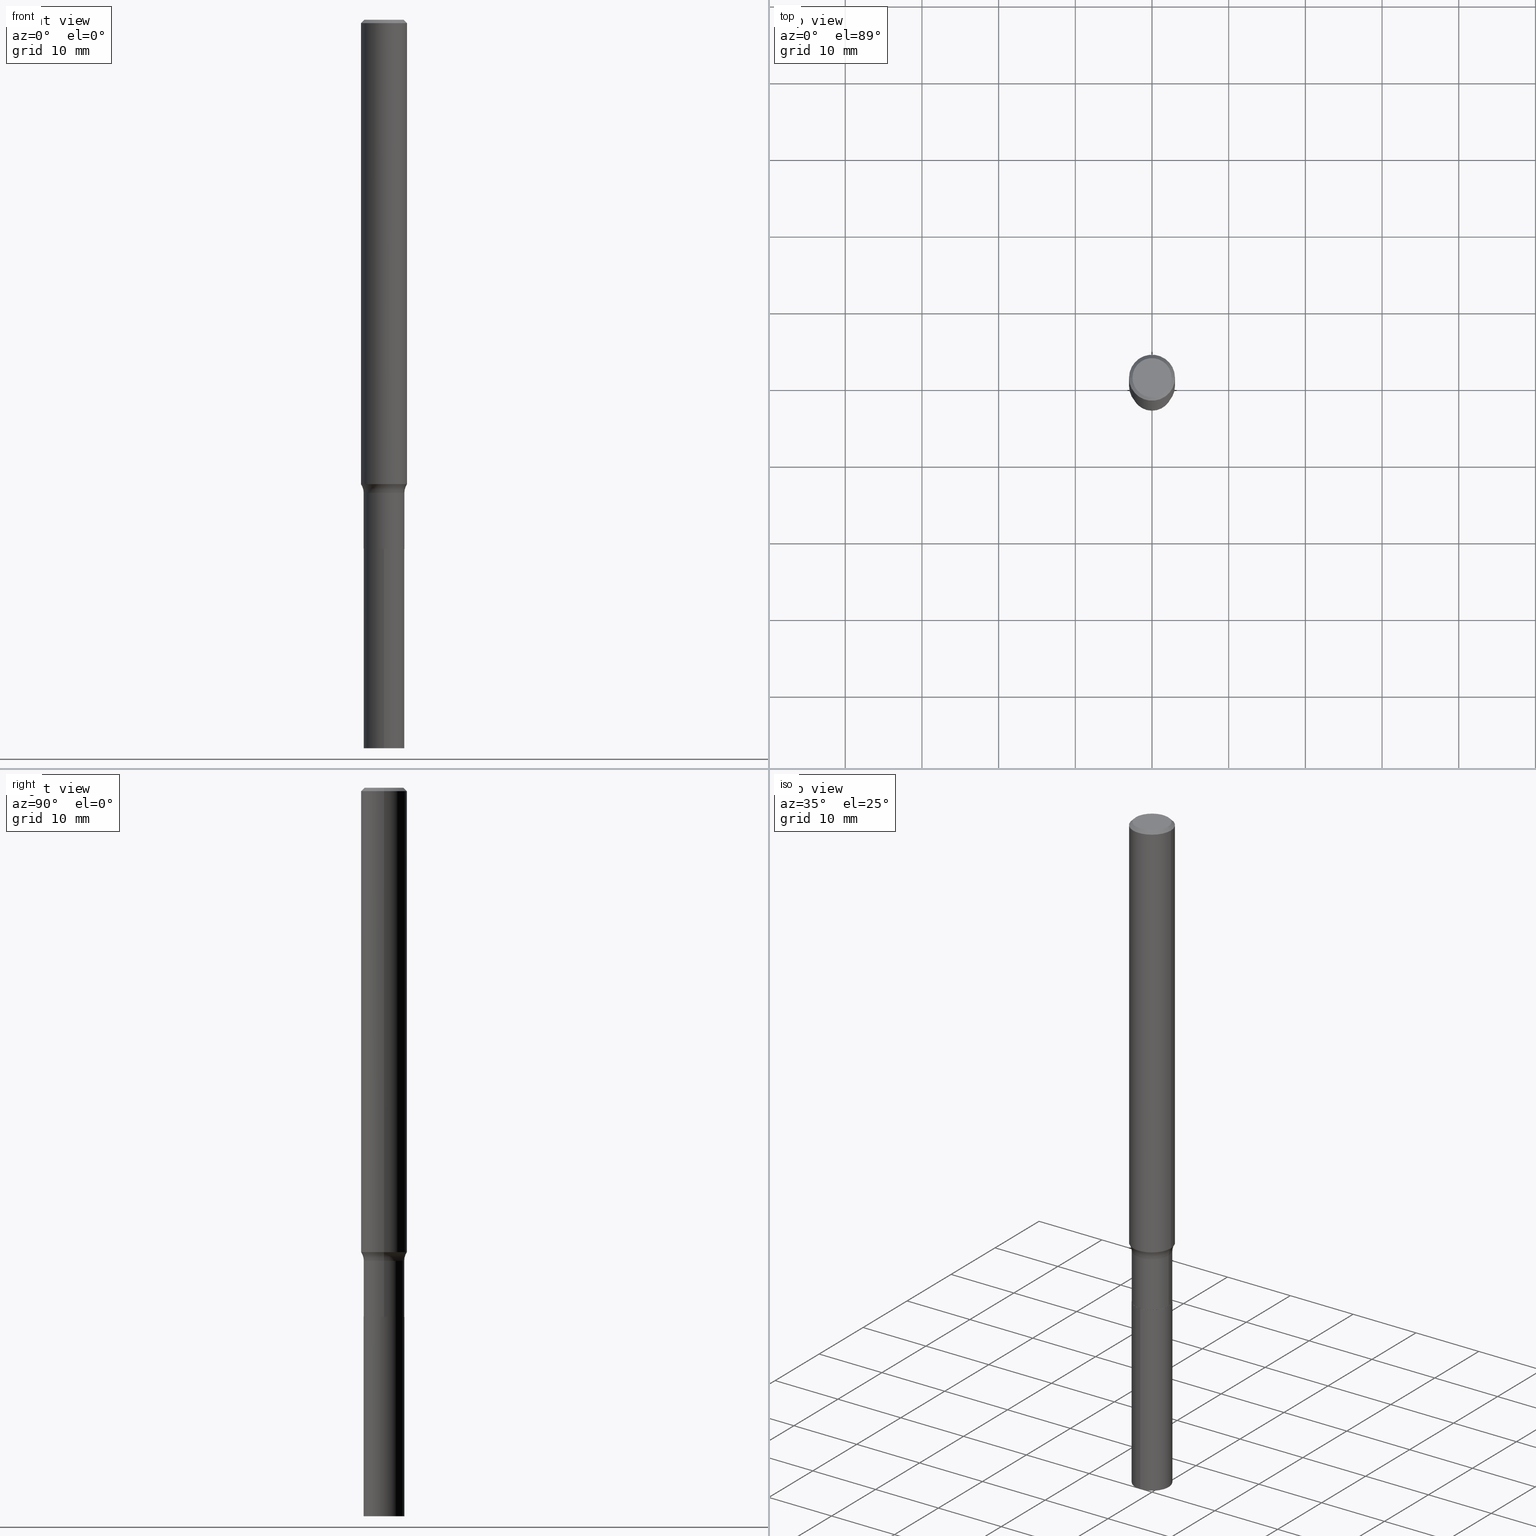
[diagram: canonical four-view strip — front | top / right | iso, engineering-drawing reading convention]
A machine part, canonical four-view strip (front | top / right | iso — engineering-drawing reading convention). The complete STEP part file that produces these views, byte-faithful:
ISO-10303-21;
HEADER;
FILE_DESCRIPTION (( 'STEP AP203' ),
    '1' );
FILE_NAME ('58885.STEP',
    '2024-04-19T14:47:31',
    ( '' ),
    ( '' ),
    'SwSTEP 2.0',
    'SolidWorks 2023',
    '' );
FILE_SCHEMA (( 'CONFIG_CONTROL_DESIGN' ));
ENDSEC;

DATA;
#1 = CARTESIAN_POINT ( 'NONE',  ( 5.830435198608251286E-29, -8.324316238174008112E-15, -2.384178928744369763 ) ) ;
#2 = PERSON_AND_ORGANIZATION ( #89, #432 ) ;
#3 = DIRECTION ( 'NONE',  ( -2.445596028614988658E-29, 3.491299149082546393E-15, 1.000000000000000000 ) ) ;
#4 = ADVANCED_FACE ( 'NONE', ( #217 ), #32, .T. ) ;
#5 = PLANE ( 'NONE',  #33 ) ;
#6 = AXIS2_PLACEMENT_3D ( 'NONE', #65, #328, #182 ) ;
#7 = DIRECTION ( 'NONE',  ( 1.000000000000000000, -6.982962677686266711E-15, 4.876176775795936353E-29 ) ) ;
#8 = ORIENTED_EDGE ( 'NONE', *, *, #399, .F. ) ;
#9 = DIRECTION ( 'NONE',  ( 2.445468806185136597E-29, -3.491481338843145583E-15, -1.000000000000000000 ) ) ;
#10 = ADVANCED_FACE ( 'NONE', ( #361 ), #254, .T. ) ;
#11 = EDGE_LOOP ( 'NONE', ( #30, #97, #161, #214 ) ) ;
#12 = APPLICATION_CONTEXT ( 'configuration controlled 3d designs of mechanical parts and assemblies' ) ;
#13 = DIRECTION ( 'NONE',  ( 1.000000000000000000, -6.982962677686269866E-15, 4.883557194083114022E-29 ) ) ;
#14 = CIRCLE ( 'NONE', #347, 0.1180999999999999966 ) ;
#15 = EDGE_LOOP ( 'NONE', ( #82, #249, #150, #457 ) ) ;
#16 = AXIS2_PLACEMENT_3D ( 'NONE', #1, #112, #143 ) ;
#17 = LINE ( 'NONE', #454, #37 ) ;
#18 = PLANE ( 'NONE',  #287 ) ;
#19 = EDGE_CURVE ( 'NONE', #196, #45, #342, .T. ) ;
#20 = CARTESIAN_POINT ( 'NONE',  ( 0.1044999999999999818, -1.021153547171454451E-14, -2.715699999999999559 ) ) ;
#21 = AXIS2_PLACEMENT_3D ( 'NONE', #325, #362, #178 ) ;
#22 = DIRECTION ( 'NONE',  ( -0.7071067811864267805, 7.493145998869918709E-15, 0.7071067811866682540 ) ) ;
#23 = VECTOR ( 'NONE', #367, 39.37007874015748143 ) ;
#24 = DIRECTION ( 'NONE',  ( 0.7071067811864267805, -2.468850131080992517E-15, 0.7071067811866682540 ) ) ;
#25 = ORIENTED_EDGE ( 'NONE', *, *, #255, .F. ) ;
#26 = CC_DESIGN_PERSON_AND_ORGANIZATION_ASSIGNMENT ( #41, #401, ( #136 ) ) ;
#27 = CALENDAR_DATE ( 2024, 19, 4 ) ;
#28 = CARTESIAN_POINT ( 'NONE',  ( -7.297195998181482598E-16, -0.1045000000000094603, -2.716199999999999282 ) ) ;
#29 = DIRECTION ( 'NONE',  ( 1.000000000000000000, -6.982962677686273810E-15, 0.000000000000000000 ) ) ;
#30 = ORIENTED_EDGE ( 'NONE', *, *, #206, .F. ) ;
#31 = DATE_TIME_ROLE ( 'creation_date' ) ;
#32 = CYLINDRICAL_SURFACE ( 'NONE', #383, 0.1181000000000001354 ) ;
#33 = AXIS2_PLACEMENT_3D ( 'NONE', #207, #276, #211 ) ;
#34 = EDGE_LOOP ( 'NONE', ( #298, #305, #110, #135 ) ) ;
#35 = CIRCLE ( 'NONE', #447, 0.1181000000000002881 ) ;
#36 = CARTESIAN_POINT ( 'NONE',  ( -7.297195998181233121E-16, -0.1045000000000130547, -3.740200000000000191 ) ) ;
#37 = VECTOR ( 'NONE', #22, 39.37007874015748143 ) ;
#38 = ORIENTED_EDGE ( 'NONE', *, *, #40, .T. ) ;
#39 = DIRECTION ( 'NONE',  ( -2.445468806185136597E-29, 3.491481338843145583E-15, 1.000000000000000000 ) ) ;
#40 = EDGE_CURVE ( 'NONE', #196, #147, #109, .T. ) ;
#41 = PERSON_AND_ORGANIZATION ( #89, #432 ) ;
#42 = LINE ( 'NONE', #372, #373 ) ;
#43 = APPROVAL_STATUS ( 'not_yet_approved' ) ;
#44 = CARTESIAN_POINT ( 'NONE',  ( -0.1181000000000001354, 8.391509709326792818E-16, -5.809262341591050090E-30 ) ) ;
#45 = VERTEX_POINT ( 'NONE', #324 ) ;
#46 = CONICAL_SURFACE ( 'NONE', #231, 0.1039999999999999813, 0.7853981633972775267 ) ;
#47 = APPROVAL_DATE_TIME ( #440, #75 ) ;
#48 = DIRECTION ( 'NONE',  ( -2.445596028614988658E-29, 3.491299149082546788E-15, 1.000000000000000000 ) ) ;
#49 = ORIENTED_EDGE ( 'NONE', *, *, #19, .T. ) ;
#50 = FACE_OUTER_BOUND ( 'NONE', #290, .T. ) ;
#51 = ORIENTED_EDGE ( 'NONE', *, *, #407, .T. ) ;
#52 = DIRECTION ( 'NONE',  ( 1.000000000000000000, -6.982962677686273810E-15, 0.000000000000000000 ) ) ;
#53 = AXIS2_PLACEMENT_3D ( 'NONE', #164, #450, #127 ) ;
#54 = ORIENTED_EDGE ( 'NONE', *, *, #57, .T. ) ;
#55 = AXIS2_PLACEMENT_3D ( 'NONE', #122, #333, #368 ) ;
#56 = CARTESIAN_POINT ( 'NONE',  ( -0.1180999999999999966, 7.628363003171413738E-16, -0.01771500000000011260 ) ) ;
#57 = EDGE_CURVE ( 'NONE', #278, #45, #327, .T. ) ;
#58 = LINE ( 'NONE', #56, #160 ) ;
#59 = LINE ( 'NONE', #314, #379 ) ;
#60 = FACE_OUTER_BOUND ( 'NONE', #257, .T. ) ;
#61 = ADVANCED_FACE ( 'NONE', ( #251 ), #46, .T. ) ;
#62 = VERTEX_POINT ( 'NONE', #28 ) ;
#63 = ORIENTED_EDGE ( 'NONE', *, *, #255, .T. ) ;
#64 = PRODUCT_RELATED_PRODUCT_CATEGORY ( 'detail', '', ( #169 ) ) ;
#65 = CARTESIAN_POINT ( 'NONE',  ( -0.1844999999999999418, -7.169158528304847755E-15, -2.428799999999999848 ) ) ;
#66 = DIRECTION ( 'NONE',  ( -2.445468806185136597E-29, 3.491481338843145583E-15, 1.000000000000000000 ) ) ;
#67 = EDGE_LOOP ( 'NONE', ( #301, #349, #71, #282 ) ) ;
#68 = APPROVAL ( #360, 'UNSPECIFIED' ) ;
#69 = LENGTH_MEASURE_WITH_UNIT ( LENGTH_MEASURE( 0.02539999999999999897 ), #138 );
#70 = DIRECTION ( 'NONE',  ( 1.000000000000000000, -6.982962677686258822E-15, 0.000000000000000000 ) ) ;
#71 = ORIENTED_EDGE ( 'NONE', *, *, #280, .T. ) ;
#72 = VECTOR ( 'NONE', #244, 39.37007874015748854 ) ;
#73 = APPROVAL_PERSON_ORGANIZATION ( #316, #371, #425 ) ;
#74 = CARTESIAN_POINT ( 'NONE',  ( 9.146672704661818171E-29, -1.305865194122628245E-14, -3.740200000000000635 ) ) ;
#75 = APPROVAL ( #43, 'UNSPECIFIED' ) ;
#76 = COORDINATED_UNIVERSAL_TIME_OFFSET ( 5, 0, .BEHIND. ) ;
#77 = DIRECTION ( 'NONE',  ( 2.438088387897960049E-29, -3.491481338843145188E-15, -1.000000000000000000 ) ) ;
#78 = PERSON_AND_ORGANIZATION_ROLE ( 'design_supplier' ) ;
#79 = CARTESIAN_POINT ( 'NONE',  ( -0.1181000000000002742, -7.485165267241327548E-15, -2.384178928744369763 ) ) ;
#80 = DIRECTION ( 'NONE',  ( 1.000000000000000000, -6.982962677686266711E-15, 4.875668750515085695E-29 ) ) ;
#81 = LOCAL_TIME ( 10, 47, 31.00000000000000000, #102 ) ;
#82 = ORIENTED_EDGE ( 'NONE', *, *, #329, .T. ) ;
#83 = AXIS2_PLACEMENT_3D ( 'NONE', #445, #9, #408 ) ;
#84 = DESIGN_CONTEXT ( 'detailed design', #12, 'design' ) ;
#85 = DIRECTION ( 'NONE',  ( -2.445596028614988658E-29, 3.491299149082546393E-15, 1.000000000000000000 ) ) ;
#86 = EDGE_LOOP ( 'NONE', ( #171, #411, #158, #355 ) ) ;
#87 = CARTESIAN_POINT ( 'NONE',  ( 6.642382371360067283E-29, -9.483561612565751485E-15, -2.716199999999999726 ) ) ;
#88 = ORIENTED_EDGE ( 'NONE', *, *, #185, .T. ) ;
#89 = PERSON ( 'UNSPECIFIED', 'UNSPECIFIED', 'UNSPECIFIED', ('UNSPECIFIED'), ('UNSPECIFIED'), ('UNSPECIFIED') ) ;
#90 = CARTESIAN_POINT ( 'NONE',  ( 0.1180999999999999966, -8.720764054544245267E-16, -0.01771500000000011260 ) ) ;
#91 = ADVANCED_FACE ( 'NONE', ( #140 ), #188, .T. ) ;
#92 = DIRECTION ( 'NONE',  ( -2.445468806185136597E-29, 3.491481338843145583E-15, 1.000000000000000000 ) ) ;
#93 = DIRECTION ( 'NONE',  ( -2.445468806185136597E-29, 3.491481338843145583E-15, 1.000000000000000000 ) ) ;
#94 = ADVANCED_FACE ( 'NONE', ( #427 ), #392, .T. ) ;
#95 = DIRECTION ( 'NONE',  ( 1.000000000000000000, -6.982962677686269866E-15, 4.883557194083114022E-29 ) ) ;
#96 =( GEOMETRIC_REPRESENTATION_CONTEXT ( 3 ) GLOBAL_UNCERTAINTY_ASSIGNED_CONTEXT ( ( #137 ) ) GLOBAL_UNIT_ASSIGNED_CONTEXT ( ( #423, #146, #434 ) ) REPRESENTATION_CONTEXT ( 'NONE', 'WORKASPACE' ) );
#97 = ORIENTED_EDGE ( 'NONE', *, *, #393, .T. ) ;
#98 = CIRCLE ( 'NONE', #209, 0.1039999999999999813 ) ;
#99 = CALENDAR_DATE ( 2024, 19, 4 ) ;
#100 = AXIS2_PLACEMENT_3D ( 'NONE', #226, #441, #154 ) ;
#101 = EDGE_LOOP ( 'NONE', ( #51, #335 ) ) ;
#102 = COORDINATED_UNIVERSAL_TIME_OFFSET ( 5, 0, .BEHIND. ) ;
#103 = CARTESIAN_POINT ( 'NONE',  ( 0.000000000000000000, 0.000000000000000000, 0.000000000000000000 ) ) ;
#104 = MECHANICAL_CONTEXT ( 'NONE', #176, 'mechanical' ) ;
#105 = VERTEX_POINT ( 'NONE', #403 ) ;
#106 = EDGE_CURVE ( 'NONE', #105, #62, #463, .T. ) ;
#107 = DIRECTION ( 'NONE',  ( 1.000000000000000000, -6.982962677686266711E-15, 4.876176775795936353E-29 ) ) ;
#108 = ORIENTED_EDGE ( 'NONE', *, *, #267, .F. ) ;
#109 = CIRCLE ( 'NONE', #16, 0.1181000000000002881 ) ;
#110 = ORIENTED_EDGE ( 'NONE', *, *, #418, .T. ) ;
#111 = CC_DESIGN_DATE_AND_TIME_ASSIGNMENT ( #174, #31, ( #365 ) ) ;
#112 = DIRECTION ( 'NONE',  ( -2.445468806185136597E-29, 3.491481338843145583E-15, 1.000000000000000000 ) ) ;
#113 = AXIS2_PLACEMENT_3D ( 'NONE', #87, #341, #452 ) ;
#114 = PERSON_AND_ORGANIZATION ( #89, #432 ) ;
#115 = AXIS2_PLACEMENT_3D ( 'NONE', #216, #66, #107 ) ;
#116 = DIRECTION ( 'NONE',  ( -6.982962677686266711E-15, -1.000000000000000000, 5.228417212754571700E-15 ) ) ;
#117 = AXIS2_PLACEMENT_3D ( 'NONE', #225, #3, #116 ) ;
#118 = AXIS2_PLACEMENT_3D ( 'NONE', #152, #39, #13 ) ;
#119 = DIRECTION ( 'NONE',  ( -2.445468806185136597E-29, 3.491481338843145583E-15, 1.000000000000000000 ) ) ;
#120 = DIRECTION ( 'NONE',  ( 1.000000000000000000, -6.982962677686258822E-15, 0.000000000000000000 ) ) ;
#121 = VERTEX_POINT ( 'NONE', #297 ) ;
#122 = CARTESIAN_POINT ( 'NONE',  ( 5.939554636462459745E-29, -8.480109875782233368E-15, -2.428800000000000292 ) ) ;
#123 = VECTOR ( 'NONE', #48, 39.37007874015748143 ) ;
#124 = CARTESIAN_POINT ( 'NONE',  ( 7.015701749847187307E-46, -1.001656274515824970E-31, -2.868857591682589212E-17 ) ) ;
#125 = EDGE_LOOP ( 'NONE', ( #88, #245, #212, #291 ) ) ;
#126 = EDGE_CURVE ( 'NONE', #435, #121, #261, .T. ) ;
#127 = DIRECTION ( 'NONE',  ( 1.000000000000000000, -6.982962677686259611E-15, 0.000000000000000000 ) ) ;
#128 = DIRECTION ( 'NONE',  ( -2.445468806185136877E-29, 3.491481338843145188E-15, 1.000000000000000000 ) ) ;
#129 = AXIS2_PLACEMENT_3D ( 'NONE', #74, #85, #336 ) ;
#130 = PLANE ( 'NONE',  #134 ) ;
#131 = CARTESIAN_POINT ( 'NONE',  ( 5.939554636462459745E-29, -8.480109875782231790E-15, -2.428799999999999848 ) ) ;
#132 = VERTEX_POINT ( 'NONE', #405 ) ;
#133 = PERSON_AND_ORGANIZATION_ROLE ( 'design_owner' ) ;
#134 = AXIS2_PLACEMENT_3D ( 'NONE', #413, #202, #309 ) ;
#135 = ORIENTED_EDGE ( 'NONE', *, *, #155, .T. ) ;
#136 = SECURITY_CLASSIFICATION ( '', '', #233 ) ;
#137 = UNCERTAINTY_MEASURE_WITH_UNIT (LENGTH_MEASURE( 1.000000000000000082E-05 ), #423, 'distance_accuracy_value', 'NONE');
#138 =( LENGTH_UNIT ( ) NAMED_UNIT ( * ) SI_UNIT ( $, .METRE. ) );
#139 = AXIS2_PLACEMENT_3D ( 'NONE', #175, #467, #284 ) ;
#140 = FACE_OUTER_BOUND ( 'NONE', #11, .T. ) ;
#141 = PRODUCT_DEFINITION_SHAPE ( 'NONE', 'NONE',  #365 ) ;
#142 = EDGE_CURVE ( 'NONE', #45, #278, #356, .T. ) ;
#143 = DIRECTION ( 'NONE',  ( 1.000000000000000000, -6.982962677686272233E-15, 0.000000000000000000 ) ) ;
#144 = DIRECTION ( 'NONE',  ( -6.982962677686266711E-15, -1.000000000000000000, 5.228417212754571700E-15 ) ) ;
#145 = LOCAL_TIME ( 10, 47, 31.00000000000000000, #281 ) ;
#146 =( NAMED_UNIT ( * ) PLANE_ANGLE_UNIT ( ) SI_UNIT ( $, .RADIAN. ) );
#147 = VERTEX_POINT ( 'NONE', #295 ) ;
#148 = AXIS2_PLACEMENT_3D ( 'NONE', #260, #235, #80 ) ;
#149 = EDGE_CURVE ( 'NONE', #121, #435, #319, .T. ) ;
#150 = ORIENTED_EDGE ( 'NONE', *, *, #57, .F. ) ;
#151 = CARTESIAN_POINT ( 'NONE',  ( 0.1003850000000000159, -7.803837484803599345E-16, -2.868857591682071522E-17 ) ) ;
#152 = CARTESIAN_POINT ( 'NONE',  ( 5.939554636462459745E-29, -8.480109875782231790E-15, -2.428799999999999848 ) ) ;
#153 = CIRCLE ( 'NONE', #219, 0.1039999999999999813 ) ;
#154 = DIRECTION ( 'NONE',  ( -6.982962677686266711E-15, -1.000000000000000000, 5.228417212754571700E-15 ) ) ;
#155 = EDGE_CURVE ( 'NONE', #340, #132, #396, .T. ) ;
#156 = VERTEX_POINT ( 'NONE', #151 ) ;
#157 = DIRECTION ( 'NONE',  ( -1.000000000000000000, 6.982962677686265922E-15, -4.876176775795935793E-29 ) ) ;
#158 = ORIENTED_EDGE ( 'NONE', *, *, #194, .T. ) ;
#159 = CARTESIAN_POINT ( 'NONE',  ( 4.332147990156996744E-31, -6.185159191760671627E-17, -0.01771500000000011260 ) ) ;
#160 = VECTOR ( 'NONE', #270, 39.37007874015748854 ) ;
#161 = ORIENTED_EDGE ( 'NONE', *, *, #378, .T. ) ;
#162 = CLOSED_SHELL ( 'NONE', ( #61, #91, #448, #337, #234, #459, #241, #4, #177, #215, #293, #307 ) ) ;
#163 = EDGE_CURVE ( 'NONE', #364, #278, #42, .T. ) ;
#164 = CARTESIAN_POINT ( 'NONE',  ( 0.1844999999999999418, -9.768466489815347178E-15, -2.428799999999999848 ) ) ;
#165 = VECTOR ( 'NONE', #128, 39.37007874015748143 ) ;
#166 = CARTESIAN_POINT ( 'NONE',  ( -4.508868773205621507E-29, -3.261416456268578167E-14, -3.740200000000000635 ) ) ;
#167 = DIRECTION ( 'NONE',  ( -6.982962677686265922E-15, -1.000000000000000000, 3.491299149082546788E-15 ) ) ;
#168 = APPROVAL_PERSON_ORGANIZATION ( #114, #75, #332 ) ;
#169 = PRODUCT ( '58885', '58885', '', ( #104 ) ) ;
#170 = DIRECTION ( 'NONE',  ( 1.000000000000000000, -6.982962677686266711E-15, 0.000000000000000000 ) ) ;
#171 = ORIENTED_EDGE ( 'NONE', *, *, #227, .F. ) ;
#172 = FACE_OUTER_BOUND ( 'NONE', #208, .T. ) ;
#173 = ORIENTED_EDGE ( 'NONE', *, *, #267, .T. ) ;
#174 = DATE_AND_TIME ( #27, #243 ) ;
#175 = CARTESIAN_POINT ( 'NONE',  ( 4.332147990156996744E-31, -6.185159191760671627E-17, -0.01771500000000011260 ) ) ;
#176 = APPLICATION_CONTEXT ( 'configuration controlled 3d designs of mechanical parts and assemblies' ) ;
#177 = ADVANCED_FACE ( 'NONE', ( #258 ), #416, .T. ) ;
#178 = DIRECTION ( 'NONE',  ( 1.000000000000000000, -6.982962677686266711E-15, 4.876176775795936353E-29 ) ) ;
#179 = AXIS2_PLACEMENT_3D ( 'NONE', #326, #353, #398 ) ;
#180 = CARTESIAN_POINT ( 'NONE',  ( 6.642382371360067283E-29, -9.483561612565751485E-15, -2.716199999999999726 ) ) ;
#181 = CARTESIAN_POINT ( 'NONE',  ( 6.641159636956974482E-29, -9.481815871896329192E-15, -2.715699999999999559 ) ) ;
#182 = DIRECTION ( 'NONE',  ( -1.000000000000000000, 7.105427357600997914E-15, 0.000000000000000000 ) ) ;
#183 = FACE_OUTER_BOUND ( 'NONE', #312, .T. ) ;
#184 = ORIENTED_EDGE ( 'NONE', *, *, #323, .F. ) ;
#185 = EDGE_CURVE ( 'NONE', #351, #414, #153, .T. ) ;
#186 = CONICAL_SURFACE ( 'NONE', #113, 0.1039999999999999813, 0.7853981633972775267 ) ;
#187 = DIRECTION ( 'NONE',  ( -2.445596028614988658E-29, 3.491299149082546393E-15, 1.000000000000000000 ) ) ;
#188 = CONICAL_SURFACE ( 'NONE', #139, 0.1180999999999999966, 0.7853981633974456145 ) ;
#189 = AXIS2_PLACEMENT_3D ( 'NONE', #339, #303, #190 ) ;
#190 = DIRECTION ( 'NONE',  ( -6.982962677686266711E-15, -1.000000000000000000, 5.228417212754571700E-15 ) ) ;
#191 = CALENDAR_DATE ( 2024, 19, 4 ) ;
#192 = DIRECTION ( 'NONE',  ( -2.445468806185136877E-29, 3.491481338843145188E-15, 1.000000000000000000 ) ) ;
#193 = DATE_TIME_ROLE ( 'classification_date' ) ;
#194 = EDGE_CURVE ( 'NONE', #435, #62, #369, .T. ) ;
#195 = CARTESIAN_POINT ( 'NONE',  ( -0.1044999999999999818, -8.238445714969977110E-15, -2.715699999999999559 ) ) ;
#196 = VERTEX_POINT ( 'NONE', #79 ) ;
#197 = SHAPE_DEFINITION_REPRESENTATION ( #141, #223 ) ;
#198 = FACE_OUTER_BOUND ( 'NONE', #15, .T. ) ;
#199 = EDGE_LOOP ( 'NONE', ( #380, #466, #238, #253 ) ) ;
#200 = CC_DESIGN_PERSON_AND_ORGANIZATION_ASSIGNMENT ( #2, #78, ( #300 ) ) ;
#201 = VERTEX_POINT ( 'NONE', #195 ) ;
#202 = DIRECTION ( 'NONE',  ( -2.438088387897960049E-29, 3.491481338843145188E-15, 1.000000000000000000 ) ) ;
#203 = CIRCLE ( 'NONE', #421, 0.1003850000000000159 ) ;
#204 = CARTESIAN_POINT ( 'NONE',  ( -0.1039999999999999813, -8.741947940201134645E-15, -2.716199999999999726 ) ) ;
#205 = DIRECTION ( 'NONE',  ( -2.445596028614988097E-29, 3.491299149082546788E-15, 1.000000000000000000 ) ) ;
#206 = EDGE_CURVE ( 'NONE', #156, #390, #289, .T. ) ;
#207 = CARTESIAN_POINT ( 'NONE',  ( 6.642382371360067283E-29, -9.483561612565751485E-15, -2.716199999999999726 ) ) ;
#208 = EDGE_LOOP ( 'NONE', ( #395, #49, #374, #8 ) ) ;
#209 = AXIS2_PLACEMENT_3D ( 'NONE', #240, #382, #237 ) ;
#210 = AXIS2_PLACEMENT_3D ( 'NONE', #375, #331, #7 ) ;
#211 = DIRECTION ( 'NONE',  ( 6.982962677686265922E-15, 1.000000000000000000, -3.491299149082546788E-15 ) ) ;
#212 = ORIENTED_EDGE ( 'NONE', *, *, #329, .F. ) ;
#213 = PERSON_AND_ORGANIZATION ( #89, #432 ) ;
#214 = ORIENTED_EDGE ( 'NONE', *, *, #418, .F. ) ;
#215 = ADVANCED_FACE ( 'NONE', ( #265 ), #406, .F. ) ;
#216 = CARTESIAN_POINT ( 'NONE',  ( 0.000000000000000000, 0.000000000000000000, 0.000000000000000000 ) ) ;
#217 = FACE_OUTER_BOUND ( 'NONE', #455, .T. ) ;
#218 = PERSON_AND_ORGANIZATION_ROLE ( 'creator' ) ;
#219 = AXIS2_PLACEMENT_3D ( 'NONE', #439, #443, #120 ) ;
#220 = ORIENTED_EDGE ( 'NONE', *, *, #248, .T. ) ;
#221 = ORIENTED_EDGE ( 'NONE', *, *, #155, .F. ) ;
#222 = EDGE_LOOP ( 'NONE', ( #220, #424 ) ) ;
#223 = ADVANCED_BREP_SHAPE_REPRESENTATION ( '58885', ( #279, #430, #381 ), #96 ) ;
#224 = CALENDAR_DATE ( 2024, 19, 4 ) ;
#225 = CARTESIAN_POINT ( 'NONE',  ( 9.146672704661818171E-29, -1.305865194122628245E-14, -3.740200000000000635 ) ) ;
#226 = CARTESIAN_POINT ( 'NONE',  ( 6.642382371360067283E-29, -9.483561612565751485E-15, -2.716199999999999726 ) ) ;
#227 = EDGE_CURVE ( 'NONE', #121, #105, #230, .T. ) ;
#228 = CARTESIAN_POINT ( 'NONE',  ( 3.507850874923593654E-46, -5.008281372579124849E-32, -1.434428795841294606E-17 ) ) ;
#229 = LOCAL_TIME ( 10, 47, 31.00000000000000000, #76 ) ;
#230 = LINE ( 'NONE', #330, #123 ) ;
#231 = AXIS2_PLACEMENT_3D ( 'NONE', #285, #462, #70 ) ;
#232 = EDGE_LOOP ( 'NONE', ( #420, #236, #444, #266 ) ) ;
#233 = SECURITY_CLASSIFICATION_LEVEL ( 'unclassified' ) ;
#234 = ADVANCED_FACE ( 'NONE', ( #198 ), #299, .T. ) ;
#235 = DIRECTION ( 'NONE',  ( -2.445468806185136597E-29, 3.491481338843145583E-15, 1.000000000000000000 ) ) ;
#236 = ORIENTED_EDGE ( 'NONE', *, *, #227, .T. ) ;
#237 = DIRECTION ( 'NONE',  ( 1.000000000000000000, -6.982962677686258822E-15, 0.000000000000000000 ) ) ;
#238 = ORIENTED_EDGE ( 'NONE', *, *, #163, .T. ) ;
#239 = FACE_OUTER_BOUND ( 'NONE', #67, .T. ) ;
#240 = CARTESIAN_POINT ( 'NONE',  ( 6.642382371360067283E-29, -9.483561612565751485E-15, -2.716199999999999726 ) ) ;
#241 = ADVANCED_FACE ( 'NONE', ( #50 ), #275, .F. ) ;
#242 = CARTESIAN_POINT ( 'NONE',  ( -0.1180999999999999966, -3.353932944113126197E-15, -0.01771500000000011260 ) ) ;
#243 = LOCAL_TIME ( 10, 47, 31.00000000000000000, #389 ) ;
#244 = DIRECTION ( 'NONE',  ( 0.7071067811865454633, -7.319954787623246579E-15, -0.7071067811865493491 ) ) ;
#245 = ORIENTED_EDGE ( 'NONE', *, *, #357, .T. ) ;
#246 = CIRCLE ( 'NONE', #446, 0.1044999999999999818 ) ;
#247 = DIRECTION ( 'NONE',  ( -2.445468806185136597E-29, 3.491481338843145583E-15, 1.000000000000000000 ) ) ;
#248 = EDGE_CURVE ( 'NONE', #62, #105, #263, .T. ) ;
#249 = ORIENTED_EDGE ( 'NONE', *, *, #343, .T. ) ;
#250 = CALENDAR_DATE ( 2024, 19, 4 ) ;
#251 = FACE_OUTER_BOUND ( 'NONE', #125, .T. ) ;
#252 = APPROVAL_DATE_TIME ( #397, #68 ) ;
#253 = ORIENTED_EDGE ( 'NONE', *, *, #142, .F. ) ;
#254 = CYLINDRICAL_SURFACE ( 'NONE', #334, 0.1044999999999999818 ) ;
#255 = EDGE_CURVE ( 'NONE', #196, #340, #449, .T. ) ;
#256 = CARTESIAN_POINT ( 'NONE',  ( 0.000000000000000000, 0.000000000000000000, 0.000000000000000000 ) ) ;
#257 = EDGE_LOOP ( 'NONE', ( #400, #468 ) ) ;
#258 = FACE_OUTER_BOUND ( 'NONE', #34, .T. ) ;
#259 = PERSON_AND_ORGANIZATION ( #89, #432 ) ;
#260 = CARTESIAN_POINT ( 'NONE',  ( 7.015701749847187307E-46, -1.001656274515824970E-31, -2.868857591682589212E-17 ) ) ;
#261 = CIRCLE ( 'NONE', #129, 0.1044999999999999818 ) ;
#262 = ADVANCED_FACE ( 'NONE', ( #264 ), #5, .F. ) ;
#263 = CIRCLE ( 'NONE', #189, 0.1044999999999999818 ) ;
#264 = FACE_OUTER_BOUND ( 'NONE', #222, .T. ) ;
#265 = FACE_OUTER_BOUND ( 'NONE', #101, .T. ) ;
#266 = ORIENTED_EDGE ( 'NONE', *, *, #194, .F. ) ;
#267 = EDGE_CURVE ( 'NONE', #147, #132, #350, .T. ) ;
#268 = AXIS2_PLACEMENT_3D ( 'NONE', #181, #247, #29 ) ;
#269 = CARTESIAN_POINT ( 'NONE',  ( -7.297195998181482598E-16, -0.1045000000000094603, -2.716199999999999282 ) ) ;
#270 = DIRECTION ( 'NONE',  ( -0.7071067811865454633, 2.468850131082235761E-15, -0.7071067811865493491 ) ) ;
#271 = ORIENTED_EDGE ( 'NONE', *, *, #399, .T. ) ;
#272 = DIRECTION ( 'NONE',  ( 1.000000000000000000, -6.982962677686272233E-15, 0.000000000000000000 ) ) ;
#273 = CARTESIAN_POINT ( 'NONE',  ( 5.830435198608251286E-29, -8.324316238174008112E-15, -2.384178928744369763 ) ) ;
#274 = CC_DESIGN_PERSON_AND_ORGANIZATION_ASSIGNMENT ( #456, #133, ( #169 ) ) ;
#275 = TOROIDAL_SURFACE ( 'NONE', #118, 0.1844999999999999418, 0.07999999999999998779 ) ;
#276 = DIRECTION ( 'NONE',  ( 2.445596028614988097E-29, -3.491299149082546788E-15, -1.000000000000000000 ) ) ;
#277 = LINE ( 'NONE', #90, #72 ) ;
#278 = VERTEX_POINT ( 'NONE', #346 ) ;
#279 = MANIFOLD_SOLID_BREP ( 'Body-Move/Copy2[1]', #304 ) ;
#280 = EDGE_CURVE ( 'NONE', #351, #364, #419, .T. ) ;
#281 = COORDINATED_UNIVERSAL_TIME_OFFSET ( 5, 0, .BEHIND. ) ;
#282 = ORIENTED_EDGE ( 'NONE', *, *, #442, .F. ) ;
#283 = APPLICATION_PROTOCOL_DEFINITION ( 'international standard', 'config_control_design', 1994, #176 ) ;
#284 = DIRECTION ( 'NONE',  ( -1.000000000000000000, 6.982962677686266711E-15, 0.000000000000000000 ) ) ;
#285 = CARTESIAN_POINT ( 'NONE',  ( 6.642382371360067283E-29, -9.483561612565751485E-15, -2.716199999999999726 ) ) ;
#286 = DIRECTION ( 'NONE',  ( -2.445468806185136597E-29, 3.491481338843145583E-15, 1.000000000000000000 ) ) ;
#287 = AXIS2_PLACEMENT_3D ( 'NONE', #166, #205, #167 ) ;
#288 = CC_DESIGN_PERSON_AND_ORGANIZATION_ASSIGNMENT ( #259, #292, ( #300 ) ) ;
#289 = CIRCLE ( 'NONE', #148, 0.1003850000000000159 ) ;
#290 = EDGE_LOOP ( 'NONE', ( #338, #184, #271, #54 ) ) ;
#291 = ORIENTED_EDGE ( 'NONE', *, *, #280, .F. ) ;
#292 = PERSON_AND_ORGANIZATION_ROLE ( 'creator' ) ;
#293 = ADVANCED_FACE ( 'NONE', ( #60 ), #130, .F. ) ;
#294 = DIRECTION ( 'NONE',  ( -2.445468806185136877E-29, 3.491481338843145188E-15, 1.000000000000000000 ) ) ;
#295 = CARTESIAN_POINT ( 'NONE',  ( 0.1181000000000002742, -9.149004130408757952E-15, -2.384178928744369763 ) ) ;
#296 = COORDINATED_UNIVERSAL_TIME_OFFSET ( 5, 0, .BEHIND. ) ;
#297 = CARTESIAN_POINT ( 'NONE',  ( 7.425171588693834510E-16, 0.1044999999999869228, -3.740200000000001079 ) ) ;
#298 = ORIENTED_EDGE ( 'NONE', *, *, #393, .F. ) ;
#299 = CYLINDRICAL_SURFACE ( 'NONE', #210, 0.1044999999999999679 ) ;
#300 = PRODUCT_DEFINITION_FORMATION_WITH_SPECIFIED_SOURCE ( 'ANY', '', #169, .NOT_KNOWN. ) ;
#301 = ORIENTED_EDGE ( 'NONE', *, *, #357, .F. ) ;
#302 = AXIS2_PLACEMENT_3D ( 'NONE', #131, #306, #95 ) ;
#303 = DIRECTION ( 'NONE',  ( -2.445596028614988658E-29, 3.491299149082546393E-15, 1.000000000000000000 ) ) ;
#304 = CLOSED_SHELL ( 'NONE', ( #10, #426, #94, #262 ) ) ;
#305 = ORIENTED_EDGE ( 'NONE', *, *, #407, .F. ) ;
#306 = DIRECTION ( 'NONE',  ( -2.445468806185136597E-29, 3.491481338843145583E-15, 1.000000000000000000 ) ) ;
#307 = ADVANCED_FACE ( 'NONE', ( #239 ), #186, .T. ) ;
#308 = CARTESIAN_POINT ( 'NONE',  ( 4.332147990156996744E-31, -6.185159191760671627E-17, -0.01771500000000011260 ) ) ;
#309 = DIRECTION ( 'NONE',  ( 1.000000000000000000, -6.982962677686265922E-15, 4.876176775795935793E-29 ) ) ;
#310 = AXIS2_PLACEMENT_3D ( 'NONE', #159, #119, #410 ) ;
#311 = CARTESIAN_POINT ( 'NONE',  ( -0.1003850000000000159, 7.319105043583386689E-16, -2.868857591683090262E-17 ) ) ;
#312 = EDGE_LOOP ( 'NONE', ( #376, #63, #437, #108 ) ) ;
#313 = EDGE_CURVE ( 'NONE', #414, #351, #98, .T. ) ;
#314 = CARTESIAN_POINT ( 'NONE',  ( -0.1044999999999999679, 7.425171588693044663E-16, -5.140287169316375031E-30 ) ) ;
#315 = ORIENTED_EDGE ( 'NONE', *, *, #126, .F. ) ;
#316 = PERSON_AND_ORGANIZATION ( #89, #432 ) ;
#317 = CARTESIAN_POINT ( 'NONE',  ( 6.642382371360067283E-29, -9.483561612565751485E-15, -2.716199999999999726 ) ) ;
#318 = CIRCLE ( 'NONE', #268, 0.1044999999999999818 ) ;
#319 = CIRCLE ( 'NONE', #117, 0.1044999999999999818 ) ;
#320 = CYLINDRICAL_SURFACE ( 'NONE', #115, 0.1044999999999999679 ) ;
#321 = DIRECTION ( 'NONE',  ( -6.982962677686266711E-15, -1.000000000000000000, 5.228417212754571700E-15 ) ) ;
#322 = APPROVAL_DATE_TIME ( #391, #371 ) ;
#323 = EDGE_CURVE ( 'NONE', #147, #196, #35, .T. ) ;
#324 = CARTESIAN_POINT ( 'NONE',  ( -0.1044999999999999540, -8.238445714969977110E-15, -2.428800000000000292 ) ) ;
#325 = CARTESIAN_POINT ( 'NONE',  ( 0.000000000000000000, 0.000000000000000000, 0.000000000000000000 ) ) ;
#326 = CARTESIAN_POINT ( 'NONE',  ( 5.939554636462459745E-29, -8.480109875782233368E-15, -2.428800000000000292 ) ) ;
#327 = CIRCLE ( 'NONE', #179, 0.1044999999999999540 ) ;
#328 = DIRECTION ( 'NONE',  ( 7.105427357601001859E-15, 1.000000000000000000, -3.491481338843145583E-15 ) ) ;
#329 = EDGE_CURVE ( 'NONE', #364, #201, #246, .T. ) ;
#330 = CARTESIAN_POINT ( 'NONE',  ( 7.425171588693709278E-16, 0.1044999999999905171, -2.716200000000000170 ) ) ;
#331 = DIRECTION ( 'NONE',  ( -2.445468806185136597E-29, 3.491481338843145583E-15, 1.000000000000000000 ) ) ;
#332 = APPROVAL_ROLE ( '' ) ;
#333 = DIRECTION ( 'NONE',  ( -2.445468806185136597E-29, 3.491481338843145583E-15, 1.000000000000000000 ) ) ;
#334 = AXIS2_PLACEMENT_3D ( 'NONE', #317, #187, #321 ) ;
#335 = ORIENTED_EDGE ( 'NONE', *, *, #206, .T. ) ;
#336 = DIRECTION ( 'NONE',  ( -6.982962677686266711E-15, -1.000000000000000000, 5.228417212754571700E-15 ) ) ;
#337 = ADVANCED_FACE ( 'NONE', ( #172 ), #422, .F. ) ;
#338 = ORIENTED_EDGE ( 'NONE', *, *, #19, .F. ) ;
#339 = CARTESIAN_POINT ( 'NONE',  ( 6.642382371360067283E-29, -9.483561612565751485E-15, -2.716199999999999726 ) ) ;
#340 = VERTEX_POINT ( 'NONE', #242 ) ;
#341 = DIRECTION ( 'NONE',  ( -2.445468806185136597E-29, 3.491481338843145583E-15, 1.000000000000000000 ) ) ;
#342 = CIRCLE ( 'NONE', #6, 0.08000000000000000167 ) ;
#343 = EDGE_CURVE ( 'NONE', #201, #45, #59, .T. ) ;
#344 = FACE_OUTER_BOUND ( 'NONE', #387, .T. ) ;
#345 = VECTOR ( 'NONE', #24, 39.37007874015748143 ) ;
#346 = CARTESIAN_POINT ( 'NONE',  ( 0.1044999999999999540, -9.209829475600448681E-15, -2.428800000000000292 ) ) ;
#347 = AXIS2_PLACEMENT_3D ( 'NONE', #308, #92, #170 ) ;
#348 = CARTESIAN_POINT ( 'NONE',  ( 0.1039999999999999813, -1.020978973104512221E-14, -2.716199999999999726 ) ) ;
#349 = ORIENTED_EDGE ( 'NONE', *, *, #313, .T. ) ;
#350 = LINE ( 'NONE', #385, #165 ) ;
#351 = VERTEX_POINT ( 'NONE', #348 ) ;
#352 = FACE_OUTER_BOUND ( 'NONE', #199, .T. ) ;
#353 = DIRECTION ( 'NONE',  ( -2.445468806185136597E-29, 3.491481338843145583E-15, 1.000000000000000000 ) ) ;
#354 = DIRECTION ( 'NONE',  ( 0.000000000000000000, 0.000000000000000000, 1.000000000000000000 ) ) ;
#355 = ORIENTED_EDGE ( 'NONE', *, *, #106, .F. ) ;
#356 = CIRCLE ( 'NONE', #55, 0.1044999999999999540 ) ;
#357 = EDGE_CURVE ( 'NONE', #414, #201, #17, .T. ) ;
#358 = APPLICATION_PROTOCOL_DEFINITION ( 'international standard', 'config_control_design', 1994, #12 ) ;
#359 = ORIENTED_EDGE ( 'NONE', *, *, #149, .F. ) ;
#360 = APPROVAL_STATUS ( 'not_yet_approved' ) ;
#361 = FACE_OUTER_BOUND ( 'NONE', #232, .T. ) ;
#362 = DIRECTION ( 'NONE',  ( -2.445468806185136597E-29, 3.491481338843145583E-15, 1.000000000000000000 ) ) ;
#363 = CC_DESIGN_APPROVAL ( #371, ( #300 ) ) ;
#364 = VERTEX_POINT ( 'NONE', #20 ) ;
#365 = PRODUCT_DEFINITION ( 'UNKNOWN', '', #300, #84 ) ;
#366 = CIRCLE ( 'NONE', #53, 0.08000000000000000167 ) ;
#367 = DIRECTION ( 'NONE',  ( -2.445596028614988658E-29, 3.491299149082546788E-15, 1.000000000000000000 ) ) ;
#368 = DIRECTION ( 'NONE',  ( 1.000000000000000000, -6.982962677686276177E-15, 0.000000000000000000 ) ) ;
#369 = LINE ( 'NONE', #269, #23 ) ;
#370 = DATE_AND_TIME ( #191, #404 ) ;
#371 = APPROVAL ( #461, 'UNSPECIFIED' ) ;
#372 = CARTESIAN_POINT ( 'NONE',  ( 0.1044999999999999679, -7.297195998182146228E-16, 5.095604730706752119E-30 ) ) ;
#373 = VECTOR ( 'NONE', #192, 39.37007874015748143 ) ;
#374 = ORIENTED_EDGE ( 'NONE', *, *, #142, .T. ) ;
#375 = CARTESIAN_POINT ( 'NONE',  ( 0.000000000000000000, 0.000000000000000000, 0.000000000000000000 ) ) ;
#376 = ORIENTED_EDGE ( 'NONE', *, *, #323, .T. ) ;
#377 = CARTESIAN_POINT ( 'NONE',  ( 6.641159636956974482E-29, -9.481815871896329192E-15, -2.715699999999999559 ) ) ;
#378 = EDGE_CURVE ( 'NONE', #132, #340, #14, .T. ) ;
#379 = VECTOR ( 'NONE', #386, 39.37007874015748143 ) ;
#380 = ORIENTED_EDGE ( 'NONE', *, *, #343, .F. ) ;
#381 = AXIS2_PLACEMENT_3D ( 'NONE', #256, #354, #465 ) ;
#382 = DIRECTION ( 'NONE',  ( -2.445468806185136597E-29, 3.491481338843145583E-15, 1.000000000000000000 ) ) ;
#383 = AXIS2_PLACEMENT_3D ( 'NONE', #103, #286, #433 ) ;
#384 = DIRECTION ( 'NONE',  ( -2.445468806185136597E-29, 3.491481338843145583E-15, 1.000000000000000000 ) ) ;
#385 = CARTESIAN_POINT ( 'NONE',  ( 0.1181000000000001354, -8.246878922347490515E-16, 5.758764772215007447E-30 ) ) ;
#386 = DIRECTION ( 'NONE',  ( -2.445468806185136877E-29, 3.491481338843145188E-15, 1.000000000000000000 ) ) ;
#387 = EDGE_LOOP ( 'NONE', ( #315, #359 ) ) ;
#388 = AXIS2_PLACEMENT_3D ( 'NONE', #180, #429, #144 ) ;
#389 = COORDINATED_UNIVERSAL_TIME_OFFSET ( 5, 0, .BEHIND. ) ;
#390 = VERTEX_POINT ( 'NONE', #311 ) ;
#391 = DATE_AND_TIME ( #250, #81 ) ;
#392 = CYLINDRICAL_SURFACE ( 'NONE', #388, 0.1044999999999999818 ) ;
#393 = EDGE_CURVE ( 'NONE', #156, #132, #277, .T. ) ;
#394 = PERSON_AND_ORGANIZATION ( #89, #432 ) ;
#395 = ORIENTED_EDGE ( 'NONE', *, *, #40, .F. ) ;
#396 = CIRCLE ( 'NONE', #310, 0.1180999999999999966 ) ;
#397 = DATE_AND_TIME ( #99, #145 ) ;
#398 = DIRECTION ( 'NONE',  ( 1.000000000000000000, -6.982962677686276177E-15, 0.000000000000000000 ) ) ;
#399 = EDGE_CURVE ( 'NONE', #147, #278, #366, .T. ) ;
#400 = ORIENTED_EDGE ( 'NONE', *, *, #185, .F. ) ;
#401 = PERSON_AND_ORGANIZATION_ROLE ( 'classification_officer' ) ;
#402 = CC_DESIGN_SECURITY_CLASSIFICATION ( #136, ( #300 ) ) ;
#403 = CARTESIAN_POINT ( 'NONE',  ( 7.425171588693961713E-16, 0.1044999999999905171, -2.716200000000000170 ) ) ;
#404 = LOCAL_TIME ( 10, 47, 31.00000000000000000, #296 ) ;
#405 = CARTESIAN_POINT ( 'NONE',  ( 0.1180999999999999966, -8.865394841523547570E-16, -0.01771500000000011260 ) ) ;
#406 = PLANE ( 'NONE',  #409 ) ;
#407 = EDGE_CURVE ( 'NONE', #390, #156, #203, .T. ) ;
#408 = DIRECTION ( 'NONE',  ( -1.000000000000000000, 6.982962677686266711E-15, 0.000000000000000000 ) ) ;
#409 = AXIS2_PLACEMENT_3D ( 'NONE', #228, #77, #157 ) ;
#410 = DIRECTION ( 'NONE',  ( 1.000000000000000000, -6.982962677686266711E-15, 0.000000000000000000 ) ) ;
#411 = ORIENTED_EDGE ( 'NONE', *, *, #149, .T. ) ;
#412 = CC_DESIGN_DATE_AND_TIME_ASSIGNMENT ( #370, #193, ( #136 ) ) ;
#413 = CARTESIAN_POINT ( 'NONE',  ( 6.642382371360067283E-29, -9.483561612565751485E-15, -2.716199999999999726 ) ) ;
#414 = VERTEX_POINT ( 'NONE', #204 ) ;
#415 = DIRECTION ( 'NONE',  ( 1.000000000000000000, -6.982962677686266711E-15, 4.875668750515085695E-29 ) ) ;
#416 = CONICAL_SURFACE ( 'NONE', #83, 0.1180999999999999966, 0.7853981633974456145 ) ;
#417 = DIRECTION ( 'NONE',  ( -2.445468806185136597E-29, 3.491481338843145583E-15, 1.000000000000000000 ) ) ;
#418 = EDGE_CURVE ( 'NONE', #390, #340, #58, .T. ) ;
#419 = LINE ( 'NONE', #451, #345 ) ;
#420 = ORIENTED_EDGE ( 'NONE', *, *, #126, .T. ) ;
#421 = AXIS2_PLACEMENT_3D ( 'NONE', #124, #384, #415 ) ;
#422 = TOROIDAL_SURFACE ( 'NONE', #302, 0.1844999999999999418, 0.07999999999999998779 ) ;
#423 =( CONVERSION_BASED_UNIT ( 'INCH', #69 ) LENGTH_UNIT ( ) NAMED_UNIT ( #464 ) );
#424 = ORIENTED_EDGE ( 'NONE', *, *, #106, .T. ) ;
#425 = APPROVAL_ROLE ( '' ) ;
#426 = ADVANCED_FACE ( 'NONE', ( #344 ), #18, .F. ) ;
#427 = FACE_OUTER_BOUND ( 'NONE', #86, .T. ) ;
#428 = CYLINDRICAL_SURFACE ( 'NONE', #21, 0.1181000000000001354 ) ;
#429 = DIRECTION ( 'NONE',  ( -2.445596028614988658E-29, 3.491299149082546393E-15, 1.000000000000000000 ) ) ;
#430 = MANIFOLD_SOLID_BREP ( 'Body-Move/Copy2[2]', #162 ) ;
#431 = APPROVAL_ROLE ( '' ) ;
#432 = ORGANIZATION ( 'UNSPECIFIED', 'UNSPECIFIED', '' ) ;
#433 = DIRECTION ( 'NONE',  ( 1.000000000000000000, -6.982962677686266711E-15, 4.876176775795936353E-29 ) ) ;
#434 =( NAMED_UNIT ( * ) SI_UNIT ( $, .STERADIAN. ) SOLID_ANGLE_UNIT ( ) );
#435 = VERTEX_POINT ( 'NONE', #36 ) ;
#436 = VECTOR ( 'NONE', #294, 39.37007874015748143 ) ;
#437 = ORIENTED_EDGE ( 'NONE', *, *, #378, .F. ) ;
#438 = CC_DESIGN_APPROVAL ( #68, ( #365 ) ) ;
#439 = CARTESIAN_POINT ( 'NONE',  ( 6.642382371360067283E-29, -9.483561612565751485E-15, -2.716199999999999726 ) ) ;
#440 = DATE_AND_TIME ( #224, #229 ) ;
#441 = DIRECTION ( 'NONE',  ( -2.445596028614988658E-29, 3.491299149082546393E-15, 1.000000000000000000 ) ) ;
#442 = EDGE_CURVE ( 'NONE', #201, #364, #318, .T. ) ;
#443 = DIRECTION ( 'NONE',  ( -2.445468806185136597E-29, 3.491481338843145583E-15, 1.000000000000000000 ) ) ;
#444 = ORIENTED_EDGE ( 'NONE', *, *, #248, .F. ) ;
#445 = CARTESIAN_POINT ( 'NONE',  ( 4.332147990156996744E-31, -6.185159191760671627E-17, -0.01771500000000011260 ) ) ;
#446 = AXIS2_PLACEMENT_3D ( 'NONE', #377, #93, #52 ) ;
#447 = AXIS2_PLACEMENT_3D ( 'NONE', #273, #417, #272 ) ;
#448 = ADVANCED_FACE ( 'NONE', ( #183 ), #428, .T. ) ;
#449 = LINE ( 'NONE', #44, #436 ) ;
#450 = DIRECTION ( 'NONE',  ( -6.982962677686266711E-15, -1.000000000000000000, 3.491481338843145583E-15 ) ) ;
#451 = CARTESIAN_POINT ( 'NONE',  ( 0.1039999999999999813, -1.020978973104512221E-14, -2.716199999999999726 ) ) ;
#452 = DIRECTION ( 'NONE',  ( 1.000000000000000000, -6.982962677686258822E-15, 0.000000000000000000 ) ) ;
#453 = CC_DESIGN_PERSON_AND_ORGANIZATION_ASSIGNMENT ( #394, #218, ( #365 ) ) ;
#454 = CARTESIAN_POINT ( 'NONE',  ( -0.1039999999999999813, -8.744597167375246635E-15, -2.716199999999999726 ) ) ;
#455 = EDGE_LOOP ( 'NONE', ( #25, #38, #173, #221 ) ) ;
#456 = PERSON_AND_ORGANIZATION ( #89, #432 ) ;
#457 = ORIENTED_EDGE ( 'NONE', *, *, #163, .F. ) ;
#458 = APPROVAL_PERSON_ORGANIZATION ( #213, #68, #431 ) ;
#459 = ADVANCED_FACE ( 'NONE', ( #352 ), #320, .T. ) ;
#460 = CC_DESIGN_APPROVAL ( #75, ( #136 ) ) ;
#461 = APPROVAL_STATUS ( 'not_yet_approved' ) ;
#462 = DIRECTION ( 'NONE',  ( -2.445468806185136597E-29, 3.491481338843145583E-15, 1.000000000000000000 ) ) ;
#463 = CIRCLE ( 'NONE', #100, 0.1044999999999999818 ) ;
#464 = DIMENSIONAL_EXPONENTS ( 1.000000000000000000, 0.000000000000000000, 0.000000000000000000, 0.000000000000000000, 0.000000000000000000, 0.000000000000000000, 0.000000000000000000 ) ;
#465 = DIRECTION ( 'NONE',  ( 1.000000000000000000, 0.000000000000000000, 0.000000000000000000 ) ) ;
#466 = ORIENTED_EDGE ( 'NONE', *, *, #442, .T. ) ;
#467 = DIRECTION ( 'NONE',  ( 2.445468806185136597E-29, -3.491481338843145583E-15, -1.000000000000000000 ) ) ;
#468 = ORIENTED_EDGE ( 'NONE', *, *, #313, .F. ) ;
ENDSEC;
END-ISO-10303-21;
